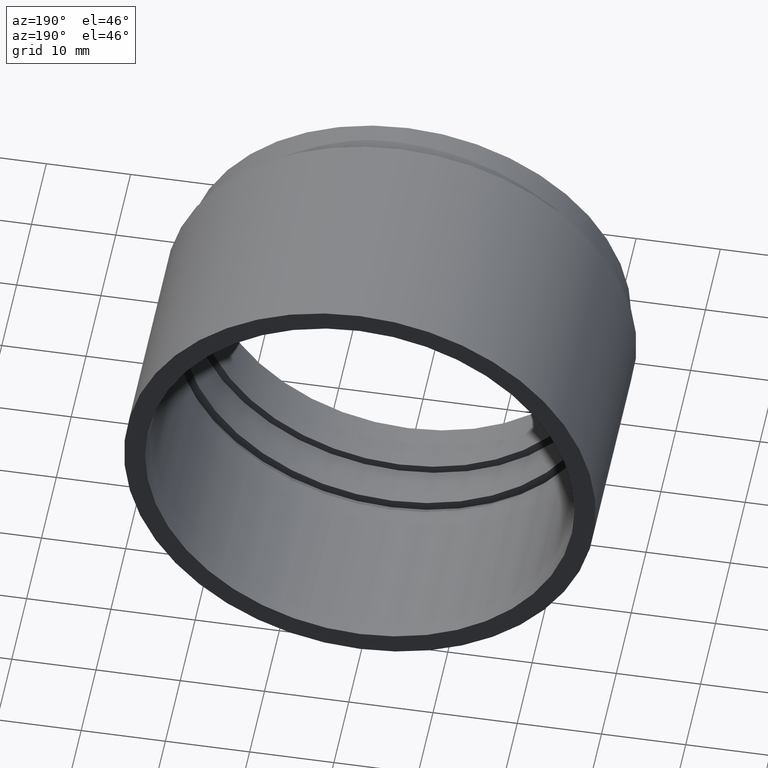
[diagram: clean part render]
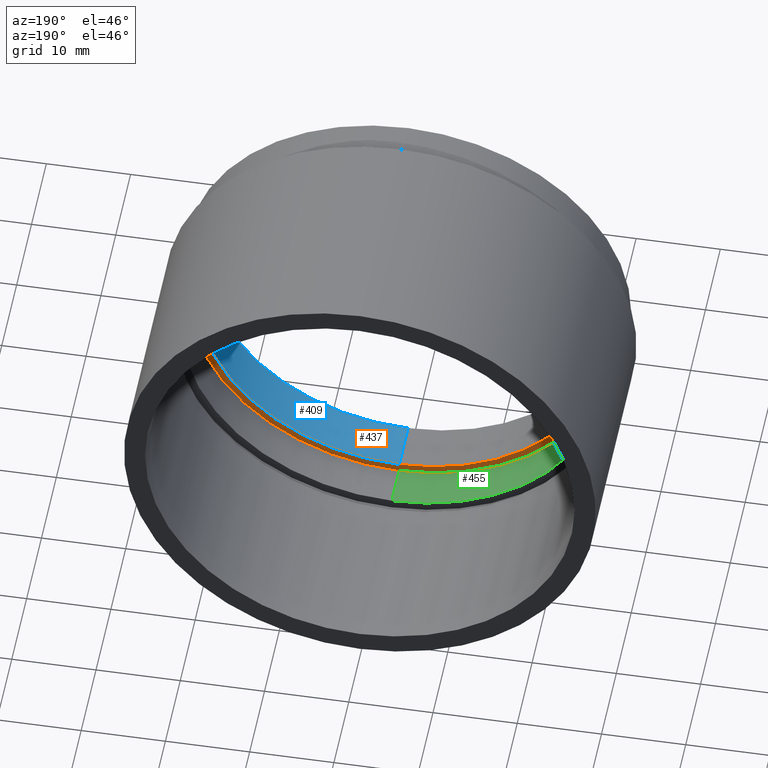
[diagram: same view with three faces highlighted in distinct colors, each labeled with its STEP entity id]
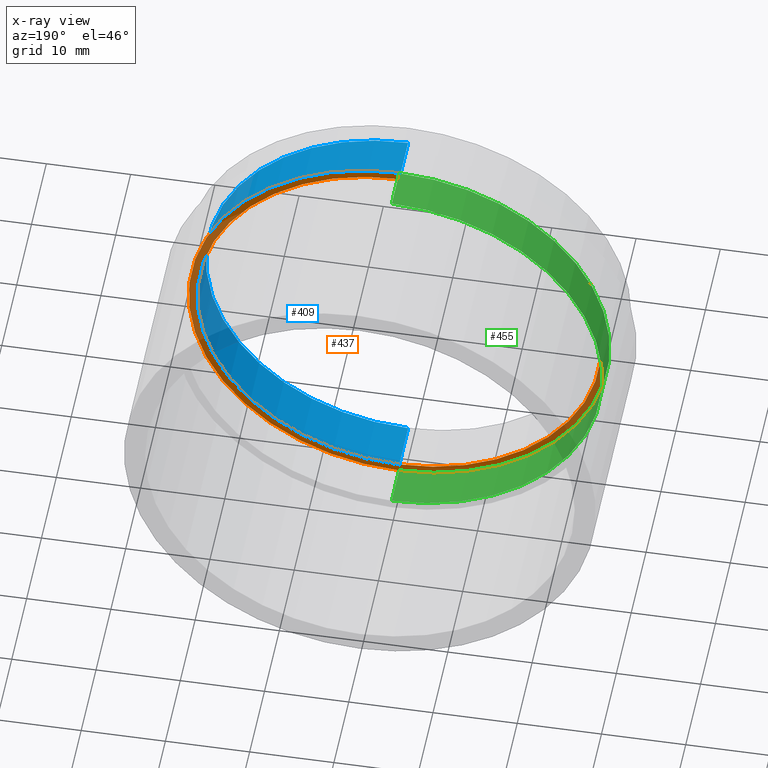
[diagram: x-ray of the same camera — body ghosted, the three highlighted faces saturated]
A machine part, auxiliary view with three faces highlighted in distinct colors.
The next image is the same camera in x-ray (body ghosted, the three faces saturated) — at least one of them is partly hidden behind the body in this view.
Their STEP definitions:

[orange] entity #437 — the highlighted planar face has unit normal (0, 1, 0).
#41 = CIRCLE ( 'NONE', #315, 24.00000000000000000 ) ;
#80 = CIRCLE ( 'NONE', #476, 25.00000000000000000 ) ;
#81 = DIRECTION ( 'NONE',  ( 0.0000000000000000000, 0.0000000000000000000, -1.000000000000000000 ) ) ;
#85 = CARTESIAN_POINT ( 'NONE',  ( 2.939152317953647900E-015, 6.000000000000000000, 24.00000000000000000 ) ) ;
#103 = VERTEX_POINT ( 'NONE', #113 ) ;
#109 = EDGE_CURVE ( 'NONE', #188, #287, #475, .T. ) ;
#113 = CARTESIAN_POINT ( 'NONE',  ( 0.0000000000000000000, 6.000000000000000900, -25.00000000000000000 ) ) ;
#114 = AXIS2_PLACEMENT_3D ( 'NONE', #445, #131, #81 ) ;
#131 = DIRECTION ( 'NONE',  ( -0.0000000000000000000, -1.000000000000000000, -0.0000000000000000000 ) ) ;
#142 = CARTESIAN_POINT ( 'NONE',  ( 25.00000000000000000, 6.000000000000000000, 0.0000000000000000000 ) ) ;
#160 = EDGE_CURVE ( 'NONE', #287, #188, #41, .T. ) ;
#173 = CARTESIAN_POINT ( 'NONE',  ( 0.0000000000000000000, 6.000000000000000000, 0.0000000000000000000 ) ) ;
#175 = DIRECTION ( 'NONE',  ( 0.0000000000000000000, 1.000000000000000000, 0.0000000000000000000 ) ) ;
#184 = DIRECTION ( 'NONE',  ( 0.0000000000000000000, 0.0000000000000000000, -1.000000000000000000 ) ) ;
#188 = VERTEX_POINT ( 'NONE', #562 ) ;
#189 = PLANE ( 'NONE',  #507 ) ;
#223 = ORIENTED_EDGE ( 'NONE', *, *, #109, .T. ) ;
#244 = CARTESIAN_POINT ( 'NONE',  ( 3.061616997868383000E-015, 6.000000000000000900, 25.00000000000000000 ) ) ;
#246 = CARTESIAN_POINT ( 'NONE',  ( 0.0000000000000000000, 6.000000000000000900, 0.0000000000000000000 ) ) ;
#254 = DIRECTION ( 'NONE',  ( -0.0000000000000000000, -1.000000000000000000, -0.0000000000000000000 ) ) ;
#287 = VERTEX_POINT ( 'NONE', #85 ) ;
#291 = CARTESIAN_POINT ( 'NONE',  ( 0.0000000000000000000, 6.000000000000000000, 0.0000000000000000000 ) ) ;
#299 = FACE_BOUND ( 'NONE', #399, .T. ) ;
#315 = AXIS2_PLACEMENT_3D ( 'NONE', #291, #556, #546 ) ;
#368 = EDGE_LOOP ( 'NONE', ( #486, #640 ) ) ;
#395 = DIRECTION ( 'NONE',  ( 0.0000000000000000000, 0.0000000000000000000, -1.000000000000000000 ) ) ;
#399 = EDGE_LOOP ( 'NONE', ( #223, #645 ) ) ;
#408 = EDGE_CURVE ( 'NONE', #103, #418, #80, .T. ) ;
#415 = AXIS2_PLACEMENT_3D ( 'NONE', #173, #428, #184 ) ;
#418 = VERTEX_POINT ( 'NONE', #244 ) ;
#424 = DIRECTION ( 'NONE',  ( 0.0000000000000000000, -0.0000000000000000000, 1.000000000000000000 ) ) ;
#428 = DIRECTION ( 'NONE',  ( -0.0000000000000000000, -1.000000000000000000, -0.0000000000000000000 ) ) ;
#430 = CIRCLE ( 'NONE', #114, 25.00000000000000000 ) ;
#437 = ADVANCED_FACE ( 'NONE', ( #299, #452 ), #189, .T. ) ;
#445 = CARTESIAN_POINT ( 'NONE',  ( 0.0000000000000000000, 6.000000000000000900, 0.0000000000000000000 ) ) ;
#452 = FACE_OUTER_BOUND ( 'NONE', #368, .T. ) ;
#475 = CIRCLE ( 'NONE', #415, 24.00000000000000000 ) ;
#476 = AXIS2_PLACEMENT_3D ( 'NONE', #246, #254, #395 ) ;
#486 = ORIENTED_EDGE ( 'NONE', *, *, #408, .F. ) ;
#507 = AXIS2_PLACEMENT_3D ( 'NONE', #142, #175, #424 ) ;
#546 = DIRECTION ( 'NONE',  ( 0.0000000000000000000, 0.0000000000000000000, -1.000000000000000000 ) ) ;
#556 = DIRECTION ( 'NONE',  ( -0.0000000000000000000, -1.000000000000000000, -0.0000000000000000000 ) ) ;
#562 = CARTESIAN_POINT ( 'NONE',  ( 0.0000000000000000000, 6.000000000000000000, -24.00000000000000000 ) ) ;
#640 = ORIENTED_EDGE ( 'NONE', *, *, #647, .F. ) ;
#645 = ORIENTED_EDGE ( 'NONE', *, *, #160, .T. ) ;
#647 = EDGE_CURVE ( 'NONE', #418, #103, #430, .T. ) ;

[blue] entity #409 — the highlighted cylindrical surface (partial cylindrical patch) has radius 24 mm, axis along (-0, -1, -0).
#29 = DIRECTION ( 'NONE',  ( -0.0000000000000000000, -1.000000000000000000, -0.0000000000000000000 ) ) ;
#46 = DIRECTION ( 'NONE',  ( -0.0000000000000000000, -1.000000000000000000, -0.0000000000000000000 ) ) ;
#85 = CARTESIAN_POINT ( 'NONE',  ( 2.939152317953647900E-015, 6.000000000000000000, 24.00000000000000000 ) ) ;
#87 = AXIS2_PLACEMENT_3D ( 'NONE', #179, #495, #178 ) ;
#102 = VECTOR ( 'NONE', #342, 1000.000000000000000 ) ;
#109 = EDGE_CURVE ( 'NONE', #188, #287, #475, .T. ) ;
#112 = EDGE_LOOP ( 'NONE', ( #514, #259, #205, #626 ) ) ;
#122 = CYLINDRICAL_SURFACE ( 'NONE', #492, 24.00000000000000000 ) ;
#138 = VERTEX_POINT ( 'NONE', #517 ) ;
#167 = VECTOR ( 'NONE', #29, 1000.000000000000000 ) ;
#173 = CARTESIAN_POINT ( 'NONE',  ( 0.0000000000000000000, 6.000000000000000000, 0.0000000000000000000 ) ) ;
#178 = DIRECTION ( 'NONE',  ( 0.0000000000000000000, 0.0000000000000000000, -1.000000000000000000 ) ) ;
#179 = CARTESIAN_POINT ( 'NONE',  ( 0.0000000000000000000, 0.0000000000000000000, 0.0000000000000000000 ) ) ;
#184 = DIRECTION ( 'NONE',  ( 0.0000000000000000000, 0.0000000000000000000, -1.000000000000000000 ) ) ;
#188 = VERTEX_POINT ( 'NONE', #562 ) ;
#192 = EDGE_CURVE ( 'NONE', #287, #474, #314, .T. ) ;
#205 = ORIENTED_EDGE ( 'NONE', *, *, #240, .T. ) ;
#240 = EDGE_CURVE ( 'NONE', #188, #138, #604, .T. ) ;
#249 = DIRECTION ( 'NONE',  ( 0.0000000000000000000, 0.0000000000000000000, -1.000000000000000000 ) ) ;
#259 = ORIENTED_EDGE ( 'NONE', *, *, #109, .F. ) ;
#270 = CARTESIAN_POINT ( 'NONE',  ( 2.939152317953647900E-015, 0.0000000000000000000, 24.00000000000000000 ) ) ;
#273 = CARTESIAN_POINT ( 'NONE',  ( 2.939152317953647900E-015, 0.0000000000000000000, 24.00000000000000000 ) ) ;
#287 = VERTEX_POINT ( 'NONE', #85 ) ;
#314 = LINE ( 'NONE', #273, #102 ) ;
#316 = CIRCLE ( 'NONE', #87, 24.00000000000000000 ) ;
#342 = DIRECTION ( 'NONE',  ( -0.0000000000000000000, -1.000000000000000000, -0.0000000000000000000 ) ) ;
#379 = CARTESIAN_POINT ( 'NONE',  ( 0.0000000000000000000, 0.0000000000000000000, -24.00000000000000000 ) ) ;
#409 = ADVANCED_FACE ( 'NONE', ( #462 ), #122, .F. ) ;
#415 = AXIS2_PLACEMENT_3D ( 'NONE', #173, #428, #184 ) ;
#428 = DIRECTION ( 'NONE',  ( -0.0000000000000000000, -1.000000000000000000, -0.0000000000000000000 ) ) ;
#438 = CARTESIAN_POINT ( 'NONE',  ( 0.0000000000000000000, 0.0000000000000000000, 0.0000000000000000000 ) ) ;
#462 = FACE_OUTER_BOUND ( 'NONE', #112, .T. ) ;
#474 = VERTEX_POINT ( 'NONE', #270 ) ;
#475 = CIRCLE ( 'NONE', #415, 24.00000000000000000 ) ;
#492 = AXIS2_PLACEMENT_3D ( 'NONE', #438, #46, #249 ) ;
#495 = DIRECTION ( 'NONE',  ( -0.0000000000000000000, -1.000000000000000000, -0.0000000000000000000 ) ) ;
#514 = ORIENTED_EDGE ( 'NONE', *, *, #192, .F. ) ;
#517 = CARTESIAN_POINT ( 'NONE',  ( 0.0000000000000000000, 0.0000000000000000000, -24.00000000000000000 ) ) ;
#562 = CARTESIAN_POINT ( 'NONE',  ( 0.0000000000000000000, 6.000000000000000000, -24.00000000000000000 ) ) ;
#577 = EDGE_CURVE ( 'NONE', #138, #474, #316, .T. ) ;
#604 = LINE ( 'NONE', #379, #167 ) ;
#626 = ORIENTED_EDGE ( 'NONE', *, *, #577, .T. ) ;

[green] entity #455 — the highlighted cylindrical surface (partial cylindrical patch) has radius 25 mm, axis along (-0, -1, -0).
#8 = FACE_OUTER_BOUND ( 'NONE', #281, .T. ) ;
#36 = DIRECTION ( 'NONE',  ( -0.0000000000000000000, -1.000000000000000000, -0.0000000000000000000 ) ) ;
#62 = LINE ( 'NONE', #498, #481 ) ;
#74 = CYLINDRICAL_SURFACE ( 'NONE', #557, 25.00000000000000000 ) ;
#75 = CARTESIAN_POINT ( 'NONE',  ( 0.0000000000000000000, 0.0000000000000000000, 0.0000000000000000000 ) ) ;
#81 = DIRECTION ( 'NONE',  ( 0.0000000000000000000, 0.0000000000000000000, -1.000000000000000000 ) ) ;
#103 = VERTEX_POINT ( 'NONE', #113 ) ;
#110 = VERTEX_POINT ( 'NONE', #372 ) ;
#113 = CARTESIAN_POINT ( 'NONE',  ( 0.0000000000000000000, 6.000000000000000900, -25.00000000000000000 ) ) ;
#114 = AXIS2_PLACEMENT_3D ( 'NONE', #445, #131, #81 ) ;
#130 = DIRECTION ( 'NONE',  ( -0.0000000000000000000, -1.000000000000000000, -0.0000000000000000000 ) ) ;
#131 = DIRECTION ( 'NONE',  ( -0.0000000000000000000, -1.000000000000000000, -0.0000000000000000000 ) ) ;
#136 = VECTOR ( 'NONE', #36, 1000.000000000000000 ) ;
#155 = CARTESIAN_POINT ( 'NONE',  ( 0.0000000000000000000, 11.00000000000000200, -25.00000000000000000 ) ) ;
#166 = EDGE_CURVE ( 'NONE', #417, #103, #62, .T. ) ;
#199 = DIRECTION ( 'NONE',  ( 0.0000000000000000000, 0.0000000000000000000, -1.000000000000000000 ) ) ;
#244 = CARTESIAN_POINT ( 'NONE',  ( 3.061616997868383000E-015, 6.000000000000000900, 25.00000000000000000 ) ) ;
#266 = EDGE_CURVE ( 'NONE', #110, #417, #597, .T. ) ;
#281 = EDGE_LOOP ( 'NONE', ( #344, #649, #405, #359 ) ) ;
#341 = DIRECTION ( 'NONE',  ( -0.0000000000000000000, -1.000000000000000000, -0.0000000000000000000 ) ) ;
#344 = ORIENTED_EDGE ( 'NONE', *, *, #266, .F. ) ;
#359 = ORIENTED_EDGE ( 'NONE', *, *, #166, .F. ) ;
#369 = DIRECTION ( 'NONE',  ( -0.0000000000000000000, -1.000000000000000000, -0.0000000000000000000 ) ) ;
#372 = CARTESIAN_POINT ( 'NONE',  ( 3.061616997868383000E-015, 11.00000000000000200, 25.00000000000000000 ) ) ;
#378 = EDGE_CURVE ( 'NONE', #110, #418, #538, .T. ) ;
#405 = ORIENTED_EDGE ( 'NONE', *, *, #647, .T. ) ;
#417 = VERTEX_POINT ( 'NONE', #155 ) ;
#418 = VERTEX_POINT ( 'NONE', #244 ) ;
#430 = CIRCLE ( 'NONE', #114, 25.00000000000000000 ) ;
#440 = AXIS2_PLACEMENT_3D ( 'NONE', #560, #369, #642 ) ;
#445 = CARTESIAN_POINT ( 'NONE',  ( 0.0000000000000000000, 6.000000000000000900, 0.0000000000000000000 ) ) ;
#455 = ADVANCED_FACE ( 'NONE', ( #8 ), #74, .F. ) ;
#481 = VECTOR ( 'NONE', #341, 1000.000000000000000 ) ;
#498 = CARTESIAN_POINT ( 'NONE',  ( 0.0000000000000000000, 0.0000000000000000000, -25.00000000000000000 ) ) ;
#538 = LINE ( 'NONE', #565, #136 ) ;
#557 = AXIS2_PLACEMENT_3D ( 'NONE', #75, #130, #199 ) ;
#560 = CARTESIAN_POINT ( 'NONE',  ( 0.0000000000000000000, 11.00000000000000200, 0.0000000000000000000 ) ) ;
#565 = CARTESIAN_POINT ( 'NONE',  ( 3.061616997868383000E-015, 0.0000000000000000000, 25.00000000000000000 ) ) ;
#597 = CIRCLE ( 'NONE', #440, 25.00000000000000000 ) ;
#642 = DIRECTION ( 'NONE',  ( 0.0000000000000000000, 0.0000000000000000000, -1.000000000000000000 ) ) ;
#647 = EDGE_CURVE ( 'NONE', #418, #103, #430, .T. ) ;
#649 = ORIENTED_EDGE ( 'NONE', *, *, #378, .T. ) ;